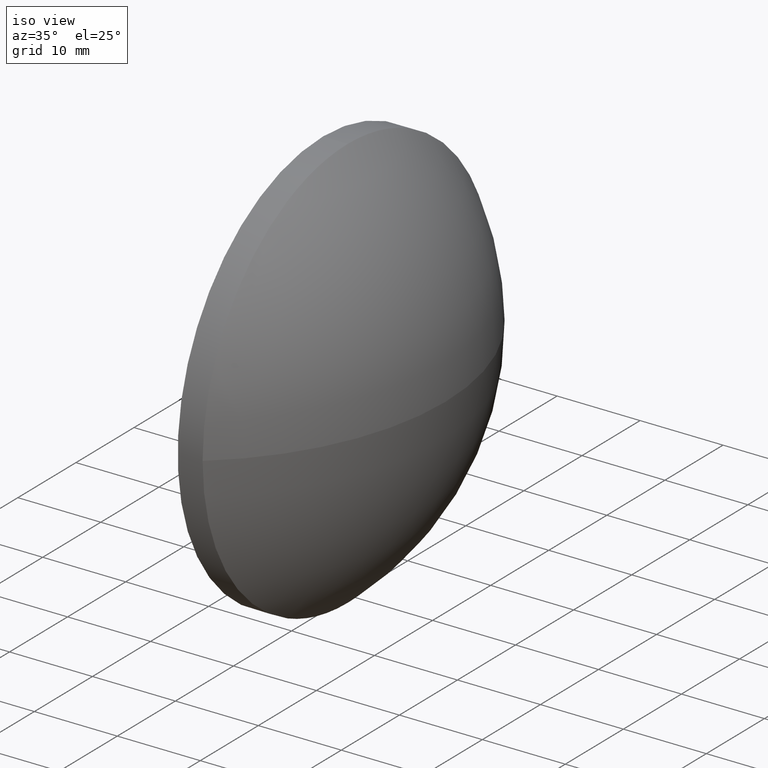
[diagram: clean part render]
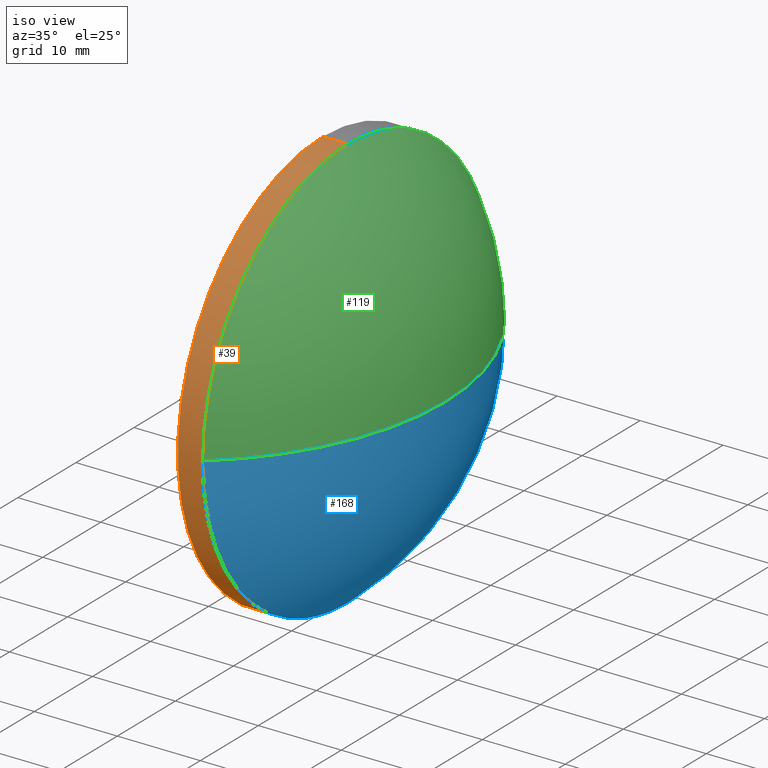
[diagram: same view with three faces highlighted in distinct colors, each labeled with its STEP entity id]
A machine part, iso view with three faces highlighted in distinct colors.
Their STEP definitions:

[orange] entity #39 — the highlighted cylindrical surface (partial cylindrical patch) has radius 25 mm, axis along (-1, -0, -0).
#1 = CARTESIAN_POINT ( 'NONE',  ( 442.1104221299683600, 81.67075448152661500, -3.061616997868383800E-015 ) ) ;
#2 = CARTESIAN_POINT ( 'NONE',  ( 439.1104221299683600, 106.6707544815266100, 0.0000000000000000000 ) ) ;
#13 = AXIS2_PLACEMENT_3D ( 'NONE', #2, #160, #186 ) ;
#14 = VERTEX_POINT ( 'NONE', #125 ) ;
#16 = ORIENTED_EDGE ( 'NONE', *, *, #128, .F. ) ;
#19 = DIRECTION ( 'NONE',  ( -1.000000000000000000, -0.0000000000000000000, -0.0000000000000000000 ) ) ;
#21 = DIRECTION ( 'NONE',  ( -1.000000000000000000, -0.0000000000000000000, -0.0000000000000000000 ) ) ;
#25 = VECTOR ( 'NONE', #71, 1000.000000000000000 ) ;
#29 = AXIS2_PLACEMENT_3D ( 'NONE', #129, #70, #114 ) ;
#31 = EDGE_CURVE ( 'NONE', #183, #64, #182, .T. ) ;
#32 = CARTESIAN_POINT ( 'NONE',  ( 429.6881826927810800, 106.6707544815266100, 25.00000000000000700 ) ) ;
#36 = DIRECTION ( 'NONE',  ( -1.000000000000000000, -0.0000000000000000000, -0.0000000000000000000 ) ) ;
#39 = ADVANCED_FACE ( 'NONE', ( #40 ), #161, .T. ) ;
#40 = FACE_OUTER_BOUND ( 'NONE', #56, .T. ) ;
#44 = EDGE_CURVE ( 'NONE', #96, #67, #112, .T. ) ;
#45 = LINE ( 'NONE', #32, #25 ) ;
#53 = ORIENTED_EDGE ( 'NONE', *, *, #97, .T. ) ;
#56 = EDGE_LOOP ( 'NONE', ( #16, #173, #53, #139, #104 ) ) ;
#59 = EDGE_CURVE ( 'NONE', #14, #67, #45, .T. ) ;
#64 = VERTEX_POINT ( 'NONE', #1 ) ;
#65 = LINE ( 'NONE', #77, #93 ) ;
#67 = VERTEX_POINT ( 'NONE', #162 ) ;
#70 = DIRECTION ( 'NONE',  ( -1.000000000000000000, -0.0000000000000000000, -0.0000000000000000000 ) ) ;
#71 = DIRECTION ( 'NONE',  ( -1.000000000000000000, -0.0000000000000000000, -0.0000000000000000000 ) ) ;
#74 = CARTESIAN_POINT ( 'NONE',  ( 442.1104221299683600, 106.6707544815266100, -25.00000000000000700 ) ) ;
#77 = CARTESIAN_POINT ( 'NONE',  ( 429.6881826927810800, 106.6707544815266100, -25.00000000000000700 ) ) ;
#86 = CARTESIAN_POINT ( 'NONE',  ( 442.1104221299683600, 106.6707544815266100, 0.0000000000000000000 ) ) ;
#93 = VECTOR ( 'NONE', #19, 1000.000000000000000 ) ;
#96 = VERTEX_POINT ( 'NONE', #117 ) ;
#97 = EDGE_CURVE ( 'NONE', #64, #14, #122, .T. ) ;
#100 = DIRECTION ( 'NONE',  ( 0.0000000000000000000, 0.0000000000000000000, 1.000000000000000000 ) ) ;
#104 = ORIENTED_EDGE ( 'NONE', *, *, #44, .F. ) ;
#112 = CIRCLE ( 'NONE', #13, 25.00000000000000700 ) ;
#114 = DIRECTION ( 'NONE',  ( 0.0000000000000000000, 0.0000000000000000000, 1.000000000000000000 ) ) ;
#117 = CARTESIAN_POINT ( 'NONE',  ( 439.1104221299683600, 106.6707544815266100, -25.00000000000000700 ) ) ;
#122 = CIRCLE ( 'NONE', #158, 25.00000000000000700 ) ;
#125 = CARTESIAN_POINT ( 'NONE',  ( 442.1104221299683600, 106.6707544815266100, 25.00000000000000700 ) ) ;
#128 = EDGE_CURVE ( 'NONE', #183, #96, #65, .T. ) ;
#129 = CARTESIAN_POINT ( 'NONE',  ( 429.6881826927810800, 106.6707544815266100, 0.0000000000000000000 ) ) ;
#139 = ORIENTED_EDGE ( 'NONE', *, *, #59, .T. ) ;
#149 = AXIS2_PLACEMENT_3D ( 'NONE', #177, #21, #174 ) ;
#158 = AXIS2_PLACEMENT_3D ( 'NONE', #86, #36, #100 ) ;
#160 = DIRECTION ( 'NONE',  ( -1.000000000000000000, -0.0000000000000000000, -0.0000000000000000000 ) ) ;
#161 = CYLINDRICAL_SURFACE ( 'NONE', #29, 25.00000000000000700 ) ;
#162 = CARTESIAN_POINT ( 'NONE',  ( 439.1104221299683600, 106.6707544815266100, 25.00000000000000700 ) ) ;
#173 = ORIENTED_EDGE ( 'NONE', *, *, #31, .T. ) ;
#174 = DIRECTION ( 'NONE',  ( 0.0000000000000000000, 0.0000000000000000000, 1.000000000000000000 ) ) ;
#177 = CARTESIAN_POINT ( 'NONE',  ( 442.1104221299683600, 106.6707544815266100, 0.0000000000000000000 ) ) ;
#182 = CIRCLE ( 'NONE', #149, 25.00000000000000700 ) ;
#183 = VERTEX_POINT ( 'NONE', #74 ) ;
#186 = DIRECTION ( 'NONE',  ( 0.0000000000000000000, 0.0000000000000000000, 1.000000000000000000 ) ) ;

[blue] entity #168 — the highlighted spherical surface has radius 32.5061 mm.
#1 = CARTESIAN_POINT ( 'NONE',  ( 442.1104221299683600, 81.67075448152661500, -3.061616997868383800E-015 ) ) ;
#6 = DIRECTION ( 'NONE',  ( 0.0000000000000000000, 1.224646799147353200E-016, -1.000000000000000000 ) ) ;
#20 = DIRECTION ( 'NONE',  ( -0.0000000000000000000, 0.0000000000000000000, -1.000000000000000000 ) ) ;
#21 = DIRECTION ( 'NONE',  ( -1.000000000000000000, -0.0000000000000000000, -0.0000000000000000000 ) ) ;
#26 = VERTEX_POINT ( 'NONE', #148 ) ;
#31 = EDGE_CURVE ( 'NONE', #183, #64, #182, .T. ) ;
#42 = EDGE_CURVE ( 'NONE', #26, #64, #163, .T. ) ;
#48 = CARTESIAN_POINT ( 'NONE',  ( 442.1104221299683600, 131.6707544815266100, 0.0000000000000000000 ) ) ;
#49 = DIRECTION ( 'NONE',  ( 0.0000000000000000000, 1.000000000000000000, 0.0000000000000000000 ) ) ;
#60 = CARTESIAN_POINT ( 'NONE',  ( 421.3343309108719800, 106.6707544815266100, 0.0000000000000000000 ) ) ;
#64 = VERTEX_POINT ( 'NONE', #1 ) ;
#68 = CIRCLE ( 'NONE', #108, 32.50609121909636900 ) ;
#69 = CARTESIAN_POINT ( 'NONE',  ( 442.1104221299683600, 106.6707544815266100, 0.0000000000000000000 ) ) ;
#74 = CARTESIAN_POINT ( 'NONE',  ( 442.1104221299683600, 106.6707544815266100, -25.00000000000000700 ) ) ;
#75 = FACE_OUTER_BOUND ( 'NONE', #185, .T. ) ;
#84 = VERTEX_POINT ( 'NONE', #48 ) ;
#85 = DIRECTION ( 'NONE',  ( -1.000000000000000000, -0.0000000000000000000, -0.0000000000000000000 ) ) ;
#99 = ORIENTED_EDGE ( 'NONE', *, *, #42, .T. ) ;
#103 = DIRECTION ( 'NONE',  ( 0.0000000000000000000, 0.0000000000000000000, 1.000000000000000000 ) ) ;
#108 = AXIS2_PLACEMENT_3D ( 'NONE', #60, #150, #130 ) ;
#111 = AXIS2_PLACEMENT_3D ( 'NONE', #69, #85, #103 ) ;
#118 = EDGE_CURVE ( 'NONE', #84, #183, #151, .T. ) ;
#124 = ORIENTED_EDGE ( 'NONE', *, *, #154, .F. ) ;
#130 = DIRECTION ( 'NONE',  ( 1.000000000000000000, 0.0000000000000000000, 0.0000000000000000000 ) ) ;
#131 = SPHERICAL_SURFACE ( 'NONE', #164, 32.50609121909638300 ) ;
#143 = ORIENTED_EDGE ( 'NONE', *, *, #118, .F. ) ;
#144 = AXIS2_PLACEMENT_3D ( 'NONE', #179, #6, #170 ) ;
#146 = CARTESIAN_POINT ( 'NONE',  ( 421.3343309108719800, 106.6707544815266100, 0.0000000000000000000 ) ) ;
#148 = CARTESIAN_POINT ( 'NONE',  ( 453.8404221299683200, 106.6707544815266100, 0.0000000000000000000 ) ) ;
#149 = AXIS2_PLACEMENT_3D ( 'NONE', #177, #21, #174 ) ;
#150 = DIRECTION ( 'NONE',  ( -0.0000000000000000000, 0.0000000000000000000, 1.000000000000000000 ) ) ;
#151 = CIRCLE ( 'NONE', #111, 25.00000000000000700 ) ;
#154 = EDGE_CURVE ( 'NONE', #26, #84, #68, .T. ) ;
#163 = CIRCLE ( 'NONE', #144, 32.50609121909638300 ) ;
#164 = AXIS2_PLACEMENT_3D ( 'NONE', #146, #20, #49 ) ;
#168 = ADVANCED_FACE ( 'NONE', ( #75 ), #131, .T. ) ;
#170 = DIRECTION ( 'NONE',  ( 0.0000000000000000000, 1.000000000000000000, 1.224646799147353200E-016 ) ) ;
#174 = DIRECTION ( 'NONE',  ( 0.0000000000000000000, 0.0000000000000000000, 1.000000000000000000 ) ) ;
#177 = CARTESIAN_POINT ( 'NONE',  ( 442.1104221299683600, 106.6707544815266100, 0.0000000000000000000 ) ) ;
#179 = CARTESIAN_POINT ( 'NONE',  ( 421.3343309108719800, 106.6707544815266100, 0.0000000000000000000 ) ) ;
#182 = CIRCLE ( 'NONE', #149, 25.00000000000000700 ) ;
#183 = VERTEX_POINT ( 'NONE', #74 ) ;
#184 = ORIENTED_EDGE ( 'NONE', *, *, #31, .F. ) ;
#185 = EDGE_LOOP ( 'NONE', ( #124, #99, #184, #143 ) ) ;

[green] entity #119 — the highlighted spherical surface has radius 32.5061 mm.
#1 = CARTESIAN_POINT ( 'NONE',  ( 442.1104221299683600, 81.67075448152661500, -3.061616997868383800E-015 ) ) ;
#3 = DIRECTION ( 'NONE',  ( -0.0000000000000000000, 0.0000000000000000000, -1.000000000000000000 ) ) ;
#5 = DIRECTION ( 'NONE',  ( 0.0000000000000000000, 1.000000000000000000, 0.0000000000000000000 ) ) ;
#6 = DIRECTION ( 'NONE',  ( 0.0000000000000000000, 1.224646799147353200E-016, -1.000000000000000000 ) ) ;
#14 = VERTEX_POINT ( 'NONE', #125 ) ;
#17 = CARTESIAN_POINT ( 'NONE',  ( 442.1104221299683600, 106.6707544815266100, 0.0000000000000000000 ) ) ;
#26 = VERTEX_POINT ( 'NONE', #148 ) ;
#28 = ORIENTED_EDGE ( 'NONE', *, *, #97, .F. ) ;
#36 = DIRECTION ( 'NONE',  ( -1.000000000000000000, -0.0000000000000000000, -0.0000000000000000000 ) ) ;
#41 = ORIENTED_EDGE ( 'NONE', *, *, #46, .F. ) ;
#42 = EDGE_CURVE ( 'NONE', #26, #64, #163, .T. ) ;
#46 = EDGE_CURVE ( 'NONE', #14, #84, #90, .T. ) ;
#48 = CARTESIAN_POINT ( 'NONE',  ( 442.1104221299683600, 131.6707544815266100, 0.0000000000000000000 ) ) ;
#50 = DIRECTION ( 'NONE',  ( 0.0000000000000000000, 0.0000000000000000000, 1.000000000000000000 ) ) ;
#60 = CARTESIAN_POINT ( 'NONE',  ( 421.3343309108719800, 106.6707544815266100, 0.0000000000000000000 ) ) ;
#64 = VERTEX_POINT ( 'NONE', #1 ) ;
#68 = CIRCLE ( 'NONE', #108, 32.50609121909636900 ) ;
#84 = VERTEX_POINT ( 'NONE', #48 ) ;
#86 = CARTESIAN_POINT ( 'NONE',  ( 442.1104221299683600, 106.6707544815266100, 0.0000000000000000000 ) ) ;
#90 = CIRCLE ( 'NONE', #136, 25.00000000000000700 ) ;
#97 = EDGE_CURVE ( 'NONE', #64, #14, #122, .T. ) ;
#100 = DIRECTION ( 'NONE',  ( 0.0000000000000000000, 0.0000000000000000000, 1.000000000000000000 ) ) ;
#107 = ORIENTED_EDGE ( 'NONE', *, *, #42, .F. ) ;
#108 = AXIS2_PLACEMENT_3D ( 'NONE', #60, #150, #130 ) ;
#116 = EDGE_LOOP ( 'NONE', ( #107, #142, #41, #28 ) ) ;
#119 = ADVANCED_FACE ( 'NONE', ( #181 ), #171, .T. ) ;
#122 = CIRCLE ( 'NONE', #158, 25.00000000000000700 ) ;
#125 = CARTESIAN_POINT ( 'NONE',  ( 442.1104221299683600, 106.6707544815266100, 25.00000000000000700 ) ) ;
#130 = DIRECTION ( 'NONE',  ( 1.000000000000000000, 0.0000000000000000000, 0.0000000000000000000 ) ) ;
#132 = AXIS2_PLACEMENT_3D ( 'NONE', #133, #3, #5 ) ;
#133 = CARTESIAN_POINT ( 'NONE',  ( 421.3343309108719800, 106.6707544815266100, 0.0000000000000000000 ) ) ;
#136 = AXIS2_PLACEMENT_3D ( 'NONE', #17, #178, #50 ) ;
#142 = ORIENTED_EDGE ( 'NONE', *, *, #154, .T. ) ;
#144 = AXIS2_PLACEMENT_3D ( 'NONE', #179, #6, #170 ) ;
#148 = CARTESIAN_POINT ( 'NONE',  ( 453.8404221299683200, 106.6707544815266100, 0.0000000000000000000 ) ) ;
#150 = DIRECTION ( 'NONE',  ( -0.0000000000000000000, 0.0000000000000000000, 1.000000000000000000 ) ) ;
#154 = EDGE_CURVE ( 'NONE', #26, #84, #68, .T. ) ;
#158 = AXIS2_PLACEMENT_3D ( 'NONE', #86, #36, #100 ) ;
#163 = CIRCLE ( 'NONE', #144, 32.50609121909638300 ) ;
#170 = DIRECTION ( 'NONE',  ( 0.0000000000000000000, 1.000000000000000000, 1.224646799147353200E-016 ) ) ;
#171 = SPHERICAL_SURFACE ( 'NONE', #132, 32.50609121909638300 ) ;
#178 = DIRECTION ( 'NONE',  ( -1.000000000000000000, -0.0000000000000000000, -0.0000000000000000000 ) ) ;
#179 = CARTESIAN_POINT ( 'NONE',  ( 421.3343309108719800, 106.6707544815266100, 0.0000000000000000000 ) ) ;
#181 = FACE_OUTER_BOUND ( 'NONE', #116, .T. ) ;